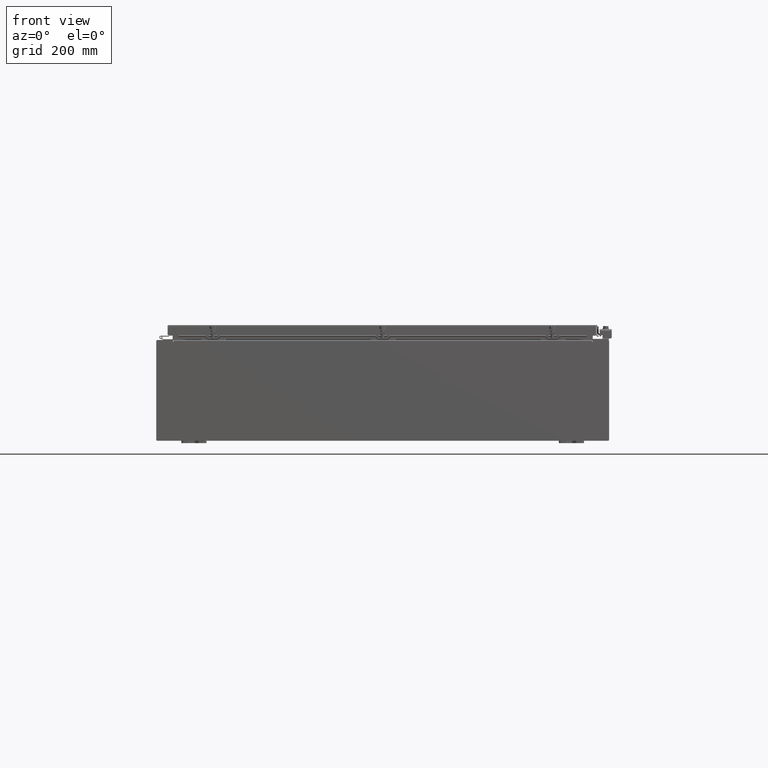
[diagram: clean part render]
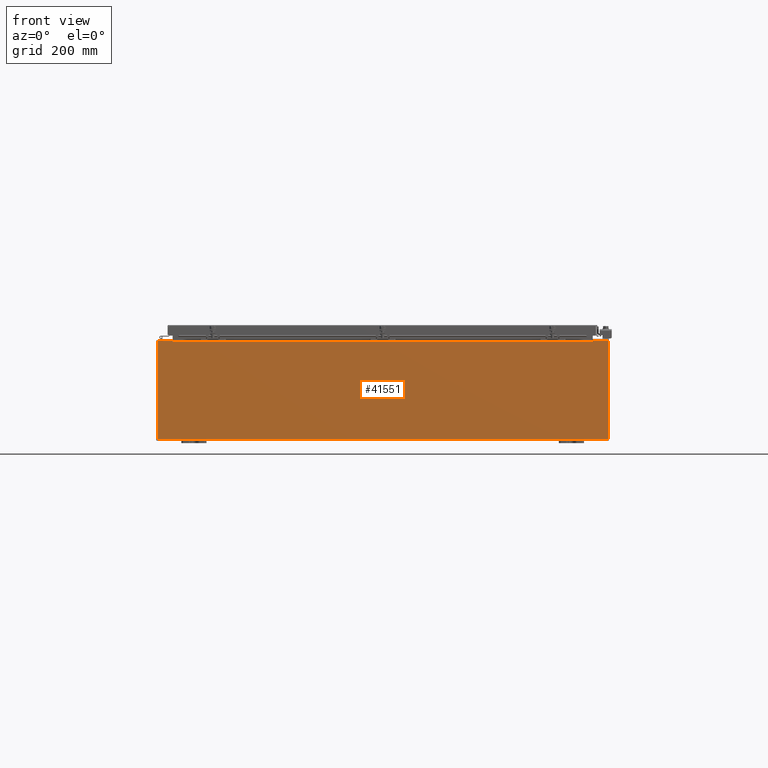
[diagram: same view with one face highlighted and labeled with its STEP entity id]
A machine part, front view. The second image highlights one B-rep face of the part: STEP entity #41551.
In plain terms, the highlighted planar face has unit normal (-0, 1, -0).
Its self-contained STEP definition (entity closure, byte-faithful):
#192 = VERTEX_POINT ( 'NONE', #9007 ) ;
#527 = EDGE_CURVE ( 'NONE', #8469, #44909, #49479, .T. ) ;
#655 = CARTESIAN_POINT ( 'NONE',  ( -17.92529999999999600, 0.0000000000000000000, 3.925300000000000500 ) ) ;
#2397 = EDGE_CURVE ( 'NONE', #38157, #7210, #28974, .T. ) ;
#2453 = CARTESIAN_POINT ( 'NONE',  ( -16.63719999999999600, 3.756290991288361700E-016, 3.912300000000000100 ) ) ;
#2470 = LINE ( 'NONE', #7645, #30540 ) ;
#2748 = CARTESIAN_POINT ( 'NONE',  ( 17.92530000000000400, 0.0000000000000000000, 3.925300000000000500 ) ) ;
#3665 = VERTEX_POINT ( 'NONE', #19525 ) ;
#4305 = LINE ( 'NONE', #46077, #44991 ) ;
#4836 = ORIENTED_EDGE ( 'NONE', *, *, #31152, .T. ) ;
#5520 = DIRECTION ( 'NONE',  ( 0.0000000000000000000, 0.0000000000000000000, -1.000000000000000000 ) ) ;
#5614 = CARTESIAN_POINT ( 'NONE',  ( 16.65587500000000500, 0.0000000000000000000, 3.874950000000000100 ) ) ;
#7172 = EDGE_CURVE ( 'NONE', #13087, #7210, #15180, .T. ) ;
#7210 = VERTEX_POINT ( 'NONE', #12840 ) ;
#7645 = CARTESIAN_POINT ( 'NONE',  ( -16.63719999999999600, 3.756290991288361700E-016, 3.912300000000000100 ) ) ;
#7931 = EDGE_CURVE ( 'NONE', #192, #16020, #4305, .T. ) ;
#8186 = VECTOR ( 'NONE', #5520, 39.37007874015748100 ) ;
#8469 = VERTEX_POINT ( 'NONE', #40255 ) ;
#8772 = EDGE_CURVE ( 'NONE', #21229, #33950, #2470, .T. ) ;
#8944 = CARTESIAN_POINT ( 'NONE',  ( -16.67454999999999600, 0.0000000000000000000, 3.874950000000000100 ) ) ;
#9007 = CARTESIAN_POINT ( 'NONE',  ( 17.92530000000000400, 0.0000000000000000000, -3.925299999999999100 ) ) ;
#9489 = DIRECTION ( 'NONE',  ( 0.0000000000000000000, 0.0000000000000000000, -1.000000000000000000 ) ) ;
#9950 = ORIENTED_EDGE ( 'NONE', *, *, #23830, .F. ) ;
#10398 = ORIENTED_EDGE ( 'NONE', *, *, #2397, .T. ) ;
#10402 = EDGE_CURVE ( 'NONE', #16020, #38157, #27416, .T. ) ;
#10511 = CARTESIAN_POINT ( 'NONE',  ( 16.67455000000000700, 0.0000000000000000000, 3.874950000000000100 ) ) ;
#10595 = AXIS2_PLACEMENT_3D ( 'NONE', #40945, #18050, #44766 ) ;
#12124 = AXIS2_PLACEMENT_3D ( 'NONE', #17876, #48418, #25578 ) ;
#12671 = CARTESIAN_POINT ( 'NONE',  ( -16.67454999999999600, -0.0000000000000000000, 0.0000000000000000000 ) ) ;
#12840 = CARTESIAN_POINT ( 'NONE',  ( -16.67454999999999600, 0.0000000000000000000, 3.925300000000000500 ) ) ;
#13087 = VERTEX_POINT ( 'NONE', #8944 ) ;
#15180 = LINE ( 'NONE', #12671, #35494 ) ;
#15327 = DIRECTION ( 'NONE',  ( 1.000000000000000000, 0.0000000000000000000, 0.0000000000000000000 ) ) ;
#16020 = VERTEX_POINT ( 'NONE', #46141 ) ;
#16588 = DIRECTION ( 'NONE',  ( 0.0000000000000000000, 0.0000000000000000000, 1.000000000000000000 ) ) ;
#16748 = CARTESIAN_POINT ( 'NONE',  ( 16.63720000000000700, 0.0000000000000000000, 0.0000000000000000000 ) ) ;
#16926 = CARTESIAN_POINT ( 'NONE',  ( -16.63719999999999600, -0.0000000000000000000, 0.0000000000000000000 ) ) ;
#17180 = VECTOR ( 'NONE', #25669, 39.37007874015748100 ) ;
#17460 = EDGE_CURVE ( 'NONE', #8469, #3665, #23808, .T. ) ;
#17815 = ORIENTED_EDGE ( 'NONE', *, *, #17460, .T. ) ;
#17876 = CARTESIAN_POINT ( 'NONE',  ( 0.0000000000000000000, 0.0000000000000000000, 0.0000000000000000000 ) ) ;
#18050 = DIRECTION ( 'NONE',  ( -0.0000000000000000000, 1.000000000000000000, -0.0000000000000000000 ) ) ;
#19347 = DIRECTION ( 'NONE',  ( -1.000000000000000000, -0.0000000000000000000, -0.0000000000000000000 ) ) ;
#19478 = DIRECTION ( 'NONE',  ( 1.000000000000000000, 0.0000000000000000000, 0.0000000000000000000 ) ) ;
#19525 = CARTESIAN_POINT ( 'NONE',  ( 17.92530000000000400, 0.0000000000000000000, 3.925300000000000500 ) ) ;
#19844 = DIRECTION ( 'NONE',  ( 1.000000000000000000, 0.0000000000000000000, 0.0000000000000000000 ) ) ;
#21229 = VERTEX_POINT ( 'NONE', #2453 ) ;
#21918 = VERTEX_POINT ( 'NONE', #25488 ) ;
#23290 = EDGE_CURVE ( 'NONE', #39671, #13087, #40642, .T. ) ;
#23697 = ORIENTED_EDGE ( 'NONE', *, *, #10402, .T. ) ;
#23715 = CARTESIAN_POINT ( 'NONE',  ( -17.92529999999999600, 0.0000000000000000000, 3.925300000000000500 ) ) ;
#23808 = LINE ( 'NONE', #23715, #36352 ) ;
#23830 = EDGE_CURVE ( 'NONE', #44909, #21918, #38743, .T. ) ;
#24743 = CARTESIAN_POINT ( 'NONE',  ( -16.63719999999999600, -0.0000000000000000000, 3.874950000000000100 ) ) ;
#25488 = CARTESIAN_POINT ( 'NONE',  ( 16.63720000000000700, 0.0000000000000000000, 3.874950000000000100 ) ) ;
#25578 = DIRECTION ( 'NONE',  ( 0.0000000000000000000, -0.0000000000000000000, -1.000000000000000000 ) ) ;
#25669 = DIRECTION ( 'NONE',  ( 0.0000000000000000000, 0.0000000000000000000, -1.000000000000000000 ) ) ;
#27416 = LINE ( 'NONE', #655, #46523 ) ;
#28514 = LINE ( 'NONE', #2748, #17180 ) ;
#28974 = LINE ( 'NONE', #46195, #37950 ) ;
#30540 = VECTOR ( 'NONE', #15327, 39.37007874015748100 ) ;
#31152 = EDGE_CURVE ( 'NONE', #3665, #192, #28514, .T. ) ;
#31460 = LINE ( 'NONE', #16748, #41670 ) ;
#32329 = DIRECTION ( 'NONE',  ( -0.0000000000000000000, 1.000000000000000000, -0.0000000000000000000 ) ) ;
#32388 = ORIENTED_EDGE ( 'NONE', *, *, #7172, .F. ) ;
#33693 = DIRECTION ( 'NONE',  ( -8.681145560800009800E-014, 0.0000000000000000000, -1.000000000000000000 ) ) ;
#33950 = VERTEX_POINT ( 'NONE', #37563 ) ;
#33998 = ORIENTED_EDGE ( 'NONE', *, *, #39053, .F. ) ;
#34042 = ORIENTED_EDGE ( 'NONE', *, *, #8772, .T. ) ;
#34510 = CARTESIAN_POINT ( 'NONE',  ( -17.92529999999999600, 0.0000000000000000000, 3.925300000000000500 ) ) ;
#34906 = EDGE_LOOP ( 'NONE', ( #32388, #45418, #33998, #34042, #39965, #9950, #37324, #17815, #4836, #37873, #23697, #10398 ) ) ;
#35241 = AXIS2_PLACEMENT_3D ( 'NONE', #5614, #32329, #9489 ) ;
#35494 = VECTOR ( 'NONE', #39404, 39.37007874015748100 ) ;
#36352 = VECTOR ( 'NONE', #19844, 39.37007874015748100 ) ;
#37324 = ORIENTED_EDGE ( 'NONE', *, *, #527, .F. ) ;
#37563 = CARTESIAN_POINT ( 'NONE',  ( 16.63720000000000700, 0.0000000000000000000, 3.912300000000000100 ) ) ;
#37873 = ORIENTED_EDGE ( 'NONE', *, *, #7931, .T. ) ;
#37950 = VECTOR ( 'NONE', #19478, 39.37007874015748100 ) ;
#38133 = VECTOR ( 'NONE', #33693, 39.37007874015748100 ) ;
#38157 = VERTEX_POINT ( 'NONE', #34510 ) ;
#38743 = CIRCLE ( 'NONE', #35241, 0.01867499999999949400 ) ;
#39053 = EDGE_CURVE ( 'NONE', #21229, #39671, #39876, .T. ) ;
#39404 = DIRECTION ( 'NONE',  ( 0.0000000000000000000, 0.0000000000000000000, 1.000000000000000000 ) ) ;
#39671 = VERTEX_POINT ( 'NONE', #24743 ) ;
#39693 = FACE_OUTER_BOUND ( 'NONE', #34906, .T. ) ;
#39876 = LINE ( 'NONE', #16926, #8186 ) ;
#39965 = ORIENTED_EDGE ( 'NONE', *, *, #46408, .F. ) ;
#40255 = CARTESIAN_POINT ( 'NONE',  ( 16.67455000000001100, 0.0000000000000000000, 3.925300000000000500 ) ) ;
#40642 = CIRCLE ( 'NONE', #10595, 0.01867499999999949400 ) ;
#40754 = PLANE ( 'NONE',  #12124 ) ;
#40945 = CARTESIAN_POINT ( 'NONE',  ( -16.65587499999999800, 0.0000000000000000000, 3.874950000000000100 ) ) ;
#41551 = ADVANCED_FACE ( 'NONE', ( #39693 ), #40754, .F. ) ;
#41670 = VECTOR ( 'NONE', #16588, 39.37007874015748100 ) ;
#44766 = DIRECTION ( 'NONE',  ( 0.0000000000000000000, 0.0000000000000000000, -1.000000000000000000 ) ) ;
#44909 = VERTEX_POINT ( 'NONE', #10511 ) ;
#44991 = VECTOR ( 'NONE', #19347, 39.37007874015748100 ) ;
#45418 = ORIENTED_EDGE ( 'NONE', *, *, #23290, .F. ) ;
#46077 = CARTESIAN_POINT ( 'NONE',  ( -17.92529999999999600, 0.0000000000000000000, -3.925299999999999100 ) ) ;
#46141 = CARTESIAN_POINT ( 'NONE',  ( -17.92529999999999600, 0.0000000000000000000, -3.925299999999999100 ) ) ;
#46195 = CARTESIAN_POINT ( 'NONE',  ( -17.92529999999999600, 0.0000000000000000000, 3.925300000000000500 ) ) ;
#46408 = EDGE_CURVE ( 'NONE', #21918, #33950, #31460, .T. ) ;
#46450 = DIRECTION ( 'NONE',  ( -0.0000000000000000000, -0.0000000000000000000, 1.000000000000000000 ) ) ;
#46523 = VECTOR ( 'NONE', #46450, 39.37007874015748100 ) ;
#48418 = DIRECTION ( 'NONE',  ( 0.0000000000000000000, -1.000000000000000000, 0.0000000000000000000 ) ) ;
#49049 = CARTESIAN_POINT ( 'NONE',  ( 16.67454999999967000, -0.0000000000000000000, -1.447541957108349400E-012 ) ) ;
#49479 = LINE ( 'NONE', #49049, #38133 ) ;